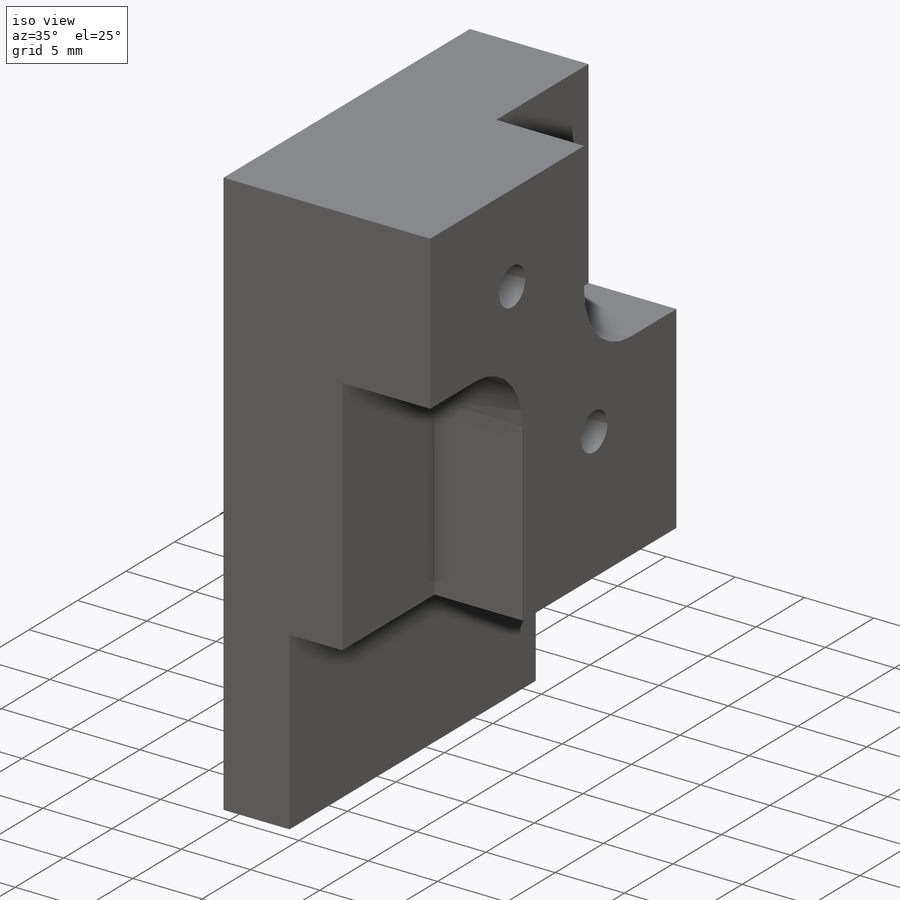
[diagram: iso view]
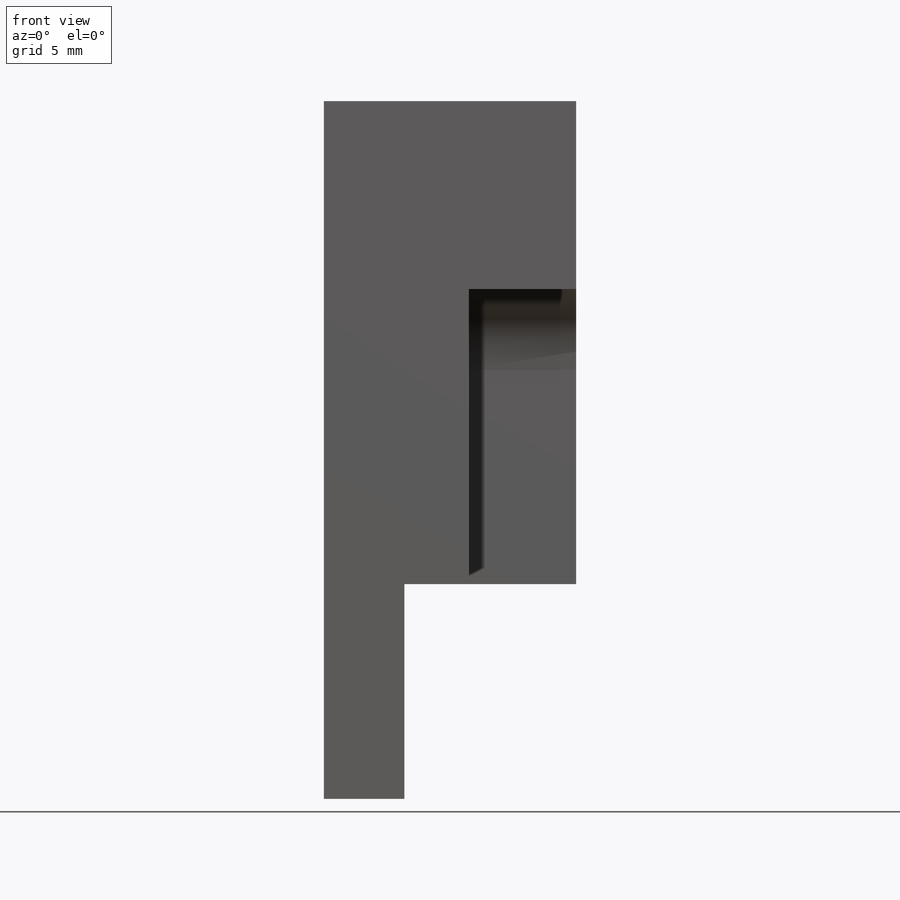
[diagram: front view]
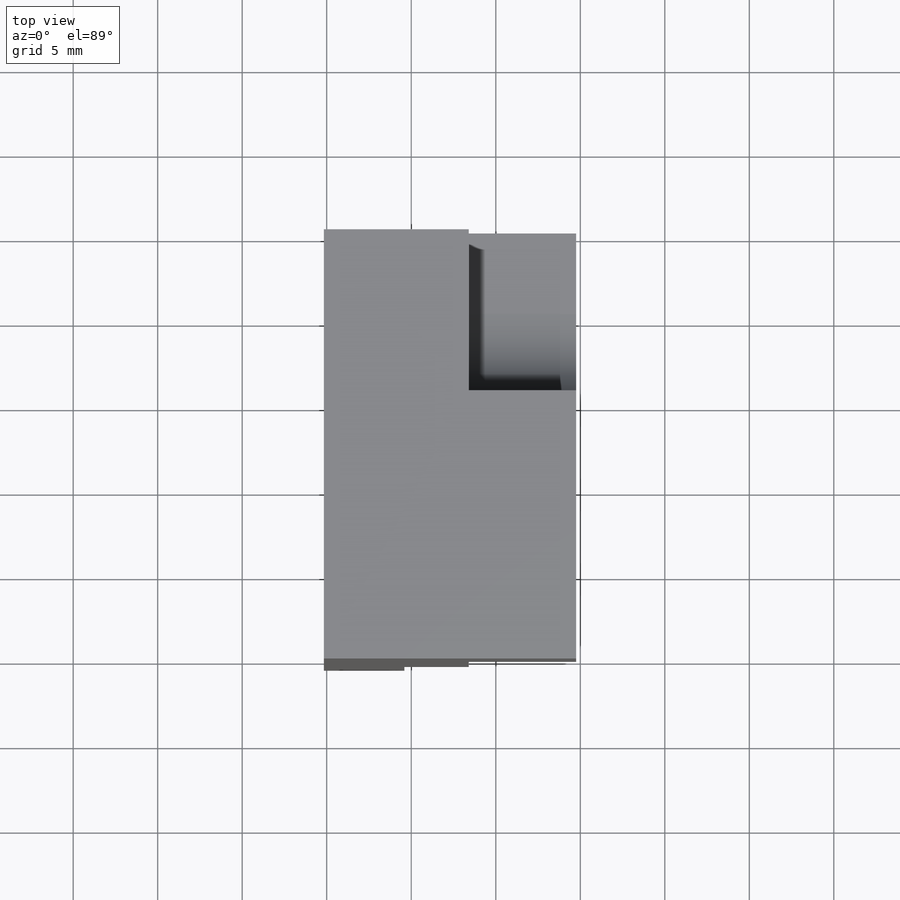
[diagram: top view]
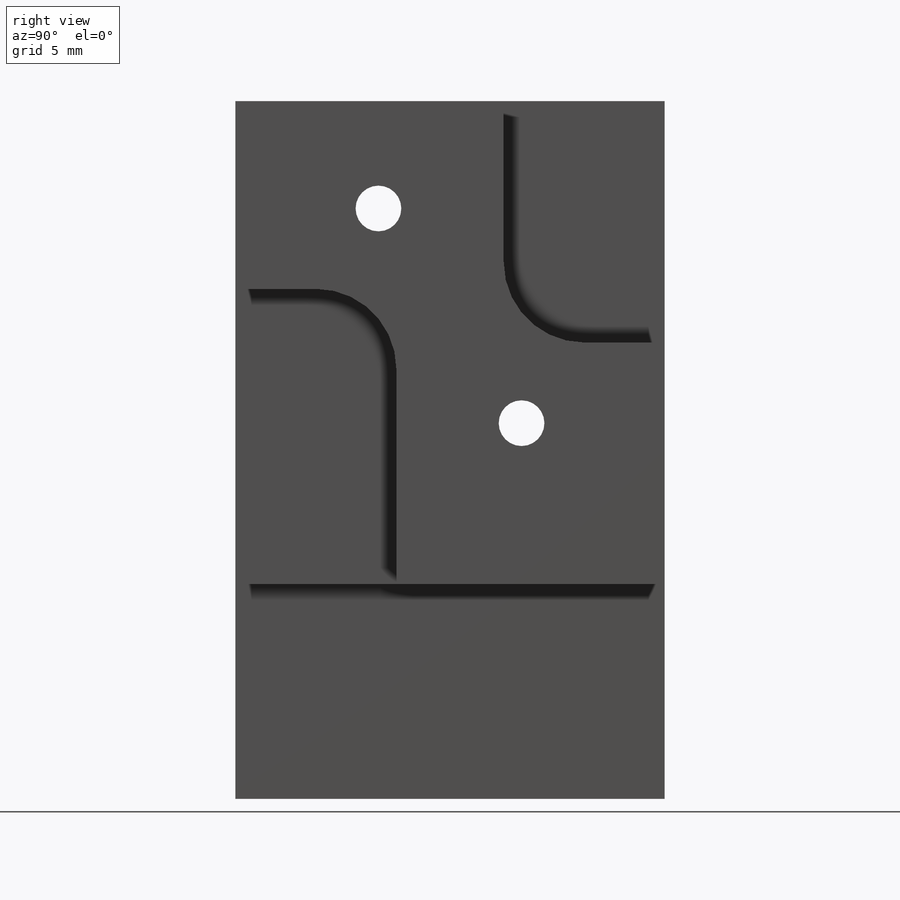
[diagram: right view]
SOLIDWORKS PART (.sldprt)
format: sldprt  version: not decoded by parser v0  size: 228,864 bytes
history: native  units: mm
features: sketch x5, material x1, extrude x1, hole x1, cut_extrude x1 (+13 scaffold rows collapsed)
feature tree (22):
  scaffold x13  (default folders/planes/origin — collapsed)
  material  "Material <not specified>"
  sketch  "Sketch1"  dims[c1.D1=~3.571875mm c1.D2=4.7625mm c1.D3=3.175mm c1.D4=3.175mm c1.D5=12.7mm c1.D6=0.0mm c1.D7=25.4mm c2.D1=10.16mm c2.D3=15.875mm]
  extrude  "Boss-Extrude1"  Depth=25.4mm
  sketch  "Sketch2"  dims[c1.D1=~8.466667mm c1.D2=~8.466667mm c1.D3=19.05mm c1.D4=6.35mm c2.D3=6.35mm c2.D4=19.05mm]
  hole  "Tap Drill for #6-32 Tap1"  Diameter=2.7051mm Depth=14.9225mm
  sketch  "3DSketch1"
  sketch  "Sketch4"  dims[hole-wizard template sketch: 60 standard entries collapsed; hole parameters kept: c18.Thru Hole Depth=14.9225mm]
  sketch  "Sketch5"  dims[D1=9.525mm D4=9.525mm D3=12.7mm D5=9.525mm D6=28.575mm D2=0.0mm]
  cut_extrude  "Cut-Extrude1"  Depth=6.35mm
decode coverage: 7 of 8 modeling features carry decoded parameters
note: ~ marks probable driven/reference dimensions
note: suppression state not decoded; provenance and decode notes live in map.json
